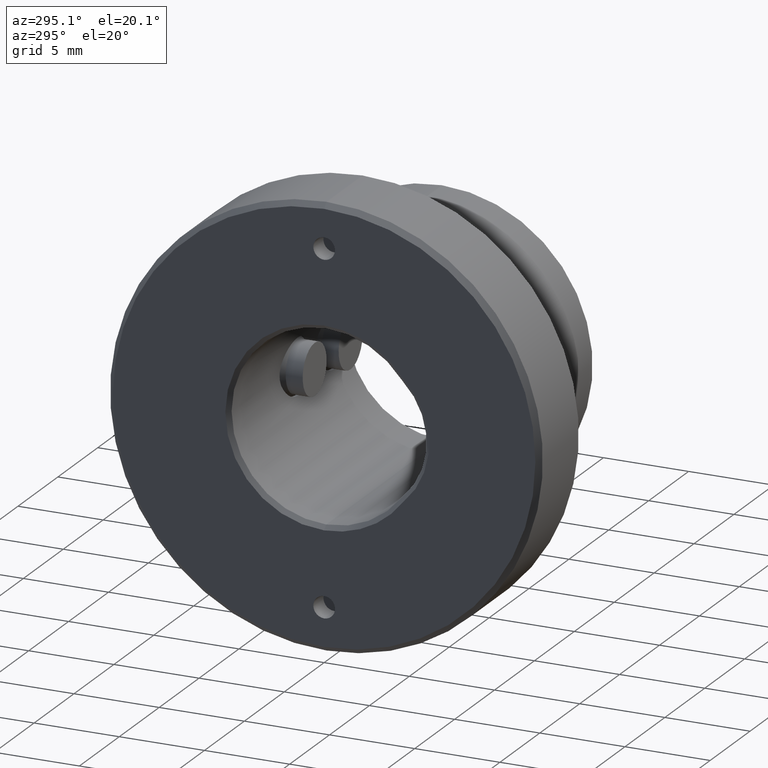
[diagram: clean part render]
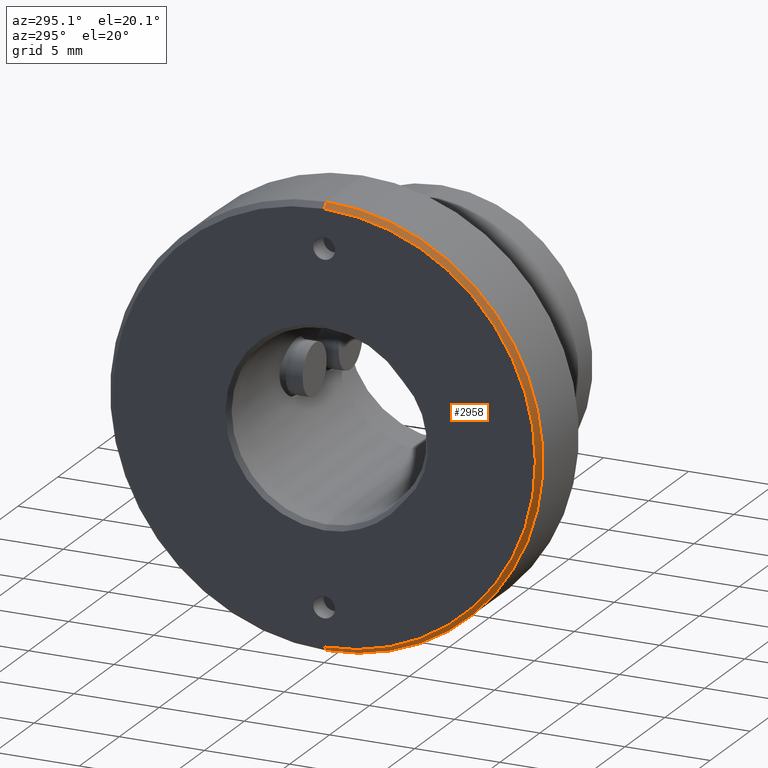
[diagram: same view with one face highlighted and labeled with its STEP entity id]
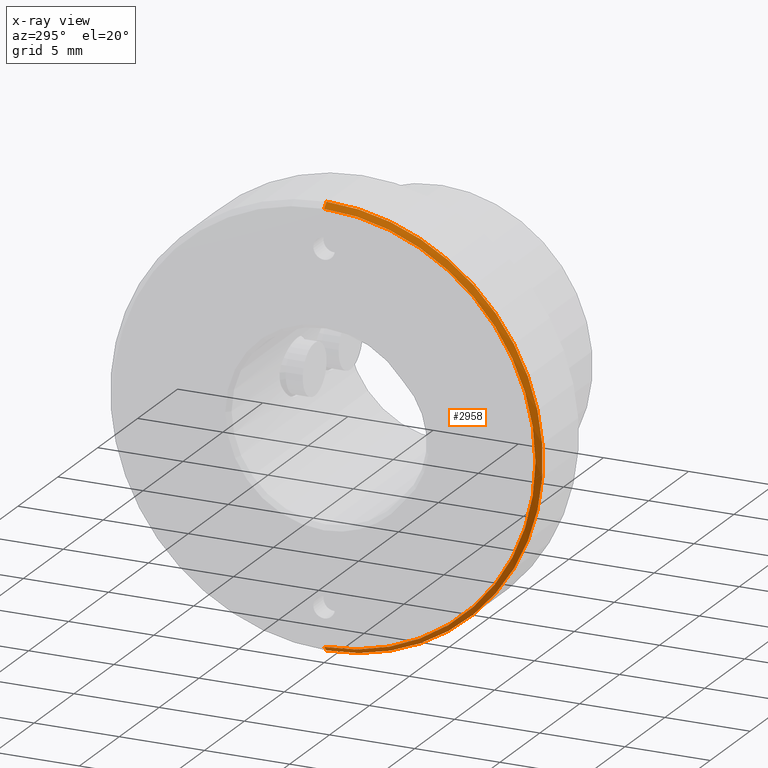
[diagram: x-ray of the same camera — body ghosted, the highlighted face saturated]
A machine part, auxiliary view. The second image highlights one B-rep face of the part: STEP entity #2958.
The next image is the same camera in x-ray: the body ghosted, the highlighted face saturated — about 0% of this face is hidden behind the body in this view.
In plain terms, the highlighted conical surface has half-angle 45 deg.
Its self-contained STEP definition (entity closure, byte-faithful):
#27 = EDGE_CURVE ( 'NONE', #82, #2923, #1874, .T. ) ;
#39 = CARTESIAN_POINT ( 'NONE',  ( 0.2999999999999964362, 1.555301434917138433E-15, 12.69999999999999929 ) ) ;
#82 = VERTEX_POINT ( 'NONE', #642 ) ;
#96 = CARTESIAN_POINT ( 'NONE',  ( 0.2999999999999964362, 0.000000000000000000, 0.000000000000000000 ) ) ;
#196 = VERTEX_POINT ( 'NONE', #1545 ) ;
#246 = VECTOR ( 'NONE', #759, 1000.000000000000114 ) ;
#396 = ORIENTED_EDGE ( 'NONE', *, *, #27, .F. ) ;
#642 = CARTESIAN_POINT ( 'NONE',  ( 0.2999999999999964362, 0.000000000000000000, 12.69999999999999929 ) ) ;
#718 = CARTESIAN_POINT ( 'NONE',  ( 0.2999999999999964362, 0.000000000000000000, 0.000000000000000000 ) ) ;
#759 = DIRECTION ( 'NONE',  ( 0.7071067811865455743, 0.000000000000000000, -0.7071067811865495711 ) ) ;
#907 = EDGE_CURVE ( 'NONE', #196, #4582, #2699, .T. ) ;
#1083 = ORIENTED_EDGE ( 'NONE', *, *, #4518, .T. ) ;
#1215 = LINE ( 'NONE', #4217, #246 ) ;
#1317 = AXIS2_PLACEMENT_3D ( 'NONE', #96, #2082, #3619 ) ;
#1422 = ORIENTED_EDGE ( 'NONE', *, *, #4605, .F. ) ;
#1545 = CARTESIAN_POINT ( 'NONE',  ( 0.000000000000000000, 0.000000000000000000, -12.40000000000000213 ) ) ;
#1549 = EDGE_LOOP ( 'NONE', ( #1422, #4782, #1083, #396 ) ) ;
#1874 = CIRCLE ( 'NONE', #2769, 12.69999999999999929 ) ;
#1895 = DIRECTION ( 'NONE',  ( -1.000000000000000000, -0.000000000000000000, -0.000000000000000000 ) ) ;
#1922 = LINE ( 'NONE', #39, #3236 ) ;
#2082 = DIRECTION ( 'NONE',  ( 1.000000000000000000, -0.000000000000000000, -0.000000000000000000 ) ) ;
#2306 = DIRECTION ( 'NONE',  ( 0.7071067811865455743, 8.659560562354957510E-17, 0.7071067811865495711 ) ) ;
#2642 = DIRECTION ( 'NONE',  ( 1.000000000000000000, -0.000000000000000000, -0.000000000000000000 ) ) ;
#2699 = CIRCLE ( 'NONE', #3356, 12.40000000000000213 ) ;
#2769 = AXIS2_PLACEMENT_3D ( 'NONE', #718, #2642, #3741 ) ;
#2864 = CONICAL_SURFACE ( 'NONE', #1317, 12.69999999999999929, 0.7853981633974511656 ) ;
#2923 = VERTEX_POINT ( 'NONE', #4327 ) ;
#2958 = ADVANCED_FACE ( 'NONE', ( #4707 ), #2864, .T. ) ;
#3236 = VECTOR ( 'NONE', #2306, 1000.000000000000114 ) ;
#3356 = AXIS2_PLACEMENT_3D ( 'NONE', #3506, #1895, #3786 ) ;
#3506 = CARTESIAN_POINT ( 'NONE',  ( 0.000000000000000000, 0.000000000000000000, 0.000000000000000000 ) ) ;
#3619 = DIRECTION ( 'NONE',  ( 0.000000000000000000, 0.000000000000000000, -1.000000000000000000 ) ) ;
#3741 = DIRECTION ( 'NONE',  ( 0.000000000000000000, 0.000000000000000000, -1.000000000000000000 ) ) ;
#3786 = DIRECTION ( 'NONE',  ( 0.000000000000000000, 0.000000000000000000, -1.000000000000000000 ) ) ;
#4217 = CARTESIAN_POINT ( 'NONE',  ( 0.2999999999999964362, 0.000000000000000000, -12.69999999999999929 ) ) ;
#4327 = CARTESIAN_POINT ( 'NONE',  ( 0.2999999999999964362, 1.555301434917138433E-15, -12.69999999999999929 ) ) ;
#4518 = EDGE_CURVE ( 'NONE', #196, #2923, #1215, .T. ) ;
#4582 = VERTEX_POINT ( 'NONE', #4596 ) ;
#4596 = CARTESIAN_POINT ( 'NONE',  ( 0.000000000000000000, 1.536931732929928397E-15, 12.40000000000000213 ) ) ;
#4605 = EDGE_CURVE ( 'NONE', #4582, #82, #1922, .T. ) ;
#4707 = FACE_OUTER_BOUND ( 'NONE', #1549, .T. ) ;
#4782 = ORIENTED_EDGE ( 'NONE', *, *, #907, .F. ) ;